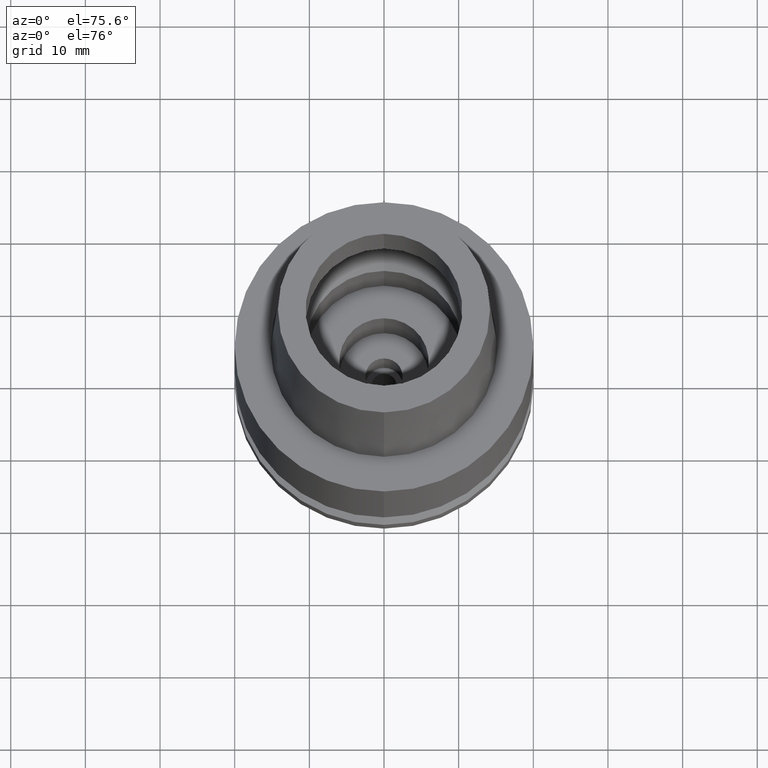
[diagram: clean part render]
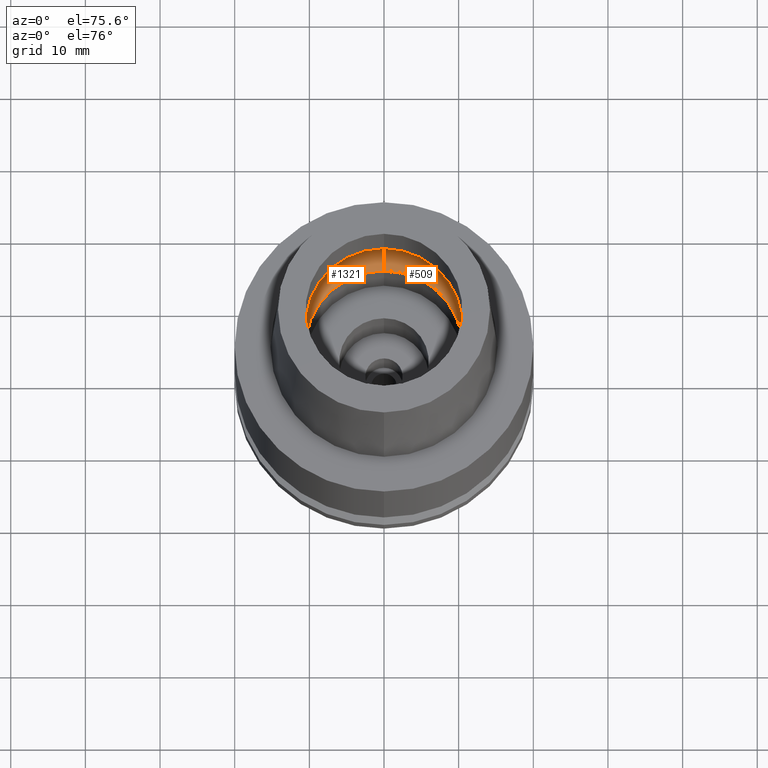
[diagram: same view with one multi-face feature highlighted, each face labeled with its STEP entity id]
A machine part, auxiliary view. The highlighted faces form ONE feature: a constant-radius fillet chain: 2 tangent blend faces with common blend radius 5 mm. The faces share edges in the B-rep.
Their STEP definitions:
[1] entity #509 (Torus):
#20 = VERTEX_POINT ( 'NONE', #2159 ) ;
#82 = DIRECTION ( 'NONE',  ( 0.0000000000000000000, 1.000000000000000000, 0.0000000000000000000 ) ) ;
#90 = DIRECTION ( 'NONE',  ( 0.0000000000000000000, 1.000000000000000000, 0.0000000000000000000 ) ) ;
#95 = DIRECTION ( 'NONE',  ( 0.0000000000000000000, 0.0000000000000000000, 1.000000000000000000 ) ) ;
#152 = CARTESIAN_POINT ( 'NONE',  ( 0.0000000000000000000, 12.75000000000000000, 4.225999999999999979 ) ) ;
#327 = CIRCLE ( 'NONE', #1332, 12.75000000000000000 ) ;
#352 = EDGE_CURVE ( 'NONE', #581, #362, #1424, .T. ) ;
#362 = VERTEX_POINT ( 'NONE', #152 ) ;
#432 = AXIS2_PLACEMENT_3D ( 'NONE', #2660, #1178, #785 ) ;
#469 = DIRECTION ( 'NONE',  ( 0.0000000000000000000, -0.5500000000000007105, -0.8351646544245028281 ) ) ;
#477 = AXIS2_PLACEMENT_3D ( 'NONE', #1713, #1469, #469 ) ;
#509 = ADVANCED_FACE ( 'NONE', ( #1107 ), #1258, .F. ) ;
#520 = ORIENTED_EDGE ( 'NONE', *, *, #1068, .F. ) ;
#581 = VERTEX_POINT ( 'NONE', #2356 ) ;
#687 = CIRCLE ( 'NONE', #477, 4.999999999999994671 ) ;
#745 = AXIS2_PLACEMENT_3D ( 'NONE', #1736, #2573, #1946 ) ;
#785 = DIRECTION ( 'NONE',  ( 0.0000000000000000000, 0.5500000000000007105, -0.8351646544245028281 ) ) ;
#1068 = EDGE_CURVE ( 'NONE', #1077, #581, #2228, .T. ) ;
#1077 = VERTEX_POINT ( 'NONE', #1318 ) ;
#1107 = FACE_OUTER_BOUND ( 'NONE', #2452, .T. ) ;
#1178 = DIRECTION ( 'NONE',  ( 1.000000000000000000, 0.0000000000000000000, 0.0000000000000000000 ) ) ;
#1258 = TOROIDAL_SURFACE ( 'NONE', #1605, 7.750000000000000000, 5.000000000000000000 ) ;
#1318 = CARTESIAN_POINT ( 'NONE',  ( 0.0000000000000000000, -10.50000000000000000, 0.05017672787749999364 ) ) ;
#1324 = ORIENTED_EDGE ( 'NONE', *, *, #352, .F. ) ;
#1332 = AXIS2_PLACEMENT_3D ( 'NONE', #2309, #1461, #90 ) ;
#1365 = EDGE_CURVE ( 'NONE', #362, #20, #327, .T. ) ;
#1424 = CIRCLE ( 'NONE', #432, 4.999999999999994671 ) ;
#1461 = DIRECTION ( 'NONE',  ( 0.0000000000000000000, 0.0000000000000000000, -1.000000000000000000 ) ) ;
#1469 = DIRECTION ( 'NONE',  ( -1.000000000000000000, 0.0000000000000000000, 0.0000000000000000000 ) ) ;
#1605 = AXIS2_PLACEMENT_3D ( 'NONE', #1949, #95, #82 ) ;
#1713 = CARTESIAN_POINT ( 'NONE',  ( 0.0000000000000000000, -7.750000000000000000, 4.225999999999999979 ) ) ;
#1736 = CARTESIAN_POINT ( 'NONE',  ( 0.0000000000000000000, 0.0000000000000000000, 0.05017672787749999364 ) ) ;
#1819 = ORIENTED_EDGE ( 'NONE', *, *, #1365, .F. ) ;
#1946 = DIRECTION ( 'NONE',  ( 0.0000000000000000000, -1.000000000000000000, 0.0000000000000000000 ) ) ;
#1949 = CARTESIAN_POINT ( 'NONE',  ( 0.0000000000000000000, 0.0000000000000000000, 4.225999999999999979 ) ) ;
#2159 = CARTESIAN_POINT ( 'NONE',  ( 0.0000000000000000000, -12.75000000000000000, 4.225999999999999979 ) ) ;
#2181 = EDGE_CURVE ( 'NONE', #1077, #20, #687, .T. ) ;
#2228 = CIRCLE ( 'NONE', #745, 10.50000000000000000 ) ;
#2309 = CARTESIAN_POINT ( 'NONE',  ( 0.0000000000000000000, 0.0000000000000000000, 4.225999999999999979 ) ) ;
#2356 = CARTESIAN_POINT ( 'NONE',  ( 0.0000000000000000000, 10.50000000000000000, 0.05017672787750999952 ) ) ;
#2409 = ORIENTED_EDGE ( 'NONE', *, *, #2181, .T. ) ;
#2452 = EDGE_LOOP ( 'NONE', ( #520, #2409, #1819, #1324 ) ) ;
#2573 = DIRECTION ( 'NONE',  ( 0.0000000000000000000, 0.0000000000000000000, 1.000000000000000000 ) ) ;
#2660 = CARTESIAN_POINT ( 'NONE',  ( 0.0000000000000000000, 7.750000000000000000, 4.225999999999999979 ) ) ;
[2] entity #1321 (Torus):
#18 = EDGE_CURVE ( 'NONE', #581, #1077, #660, .T. ) ;
#20 = VERTEX_POINT ( 'NONE', #2159 ) ;
#53 = CARTESIAN_POINT ( 'NONE',  ( 0.0000000000000000000, 0.0000000000000000000, 4.225999999999999979 ) ) ;
#152 = CARTESIAN_POINT ( 'NONE',  ( 0.0000000000000000000, 12.75000000000000000, 4.225999999999999979 ) ) ;
#267 = DIRECTION ( 'NONE',  ( 0.0000000000000000000, 0.0000000000000000000, 1.000000000000000000 ) ) ;
#352 = EDGE_CURVE ( 'NONE', #581, #362, #1424, .T. ) ;
#362 = VERTEX_POINT ( 'NONE', #152 ) ;
#432 = AXIS2_PLACEMENT_3D ( 'NONE', #2660, #1178, #785 ) ;
#469 = DIRECTION ( 'NONE',  ( 0.0000000000000000000, -0.5500000000000007105, -0.8351646544245028281 ) ) ;
#477 = AXIS2_PLACEMENT_3D ( 'NONE', #1713, #1469, #469 ) ;
#489 = CARTESIAN_POINT ( 'NONE',  ( 0.0000000000000000000, 0.0000000000000000000, 4.225999999999999979 ) ) ;
#581 = VERTEX_POINT ( 'NONE', #2356 ) ;
#660 = CIRCLE ( 'NONE', #2667, 10.50000000000000000 ) ;
#679 = CARTESIAN_POINT ( 'NONE',  ( 0.0000000000000000000, 0.0000000000000000000, 0.05017672787749999364 ) ) ;
#687 = CIRCLE ( 'NONE', #477, 4.999999999999994671 ) ;
#698 = FACE_OUTER_BOUND ( 'NONE', #1209, .T. ) ;
#725 = ORIENTED_EDGE ( 'NONE', *, *, #352, .T. ) ;
#785 = DIRECTION ( 'NONE',  ( 0.0000000000000000000, 0.5500000000000007105, -0.8351646544245028281 ) ) ;
#861 = TOROIDAL_SURFACE ( 'NONE', #1585, 7.750000000000000000, 5.000000000000000000 ) ;
#939 = EDGE_CURVE ( 'NONE', #20, #362, #2365, .T. ) ;
#1077 = VERTEX_POINT ( 'NONE', #1318 ) ;
#1178 = DIRECTION ( 'NONE',  ( 1.000000000000000000, 0.0000000000000000000, 0.0000000000000000000 ) ) ;
#1209 = EDGE_LOOP ( 'NONE', ( #2401, #1752, #1990, #725 ) ) ;
#1318 = CARTESIAN_POINT ( 'NONE',  ( 0.0000000000000000000, -10.50000000000000000, 0.05017672787749999364 ) ) ;
#1321 = ADVANCED_FACE ( 'NONE', ( #698 ), #861, .F. ) ;
#1424 = CIRCLE ( 'NONE', #432, 4.999999999999994671 ) ;
#1469 = DIRECTION ( 'NONE',  ( -1.000000000000000000, 0.0000000000000000000, 0.0000000000000000000 ) ) ;
#1585 = AXIS2_PLACEMENT_3D ( 'NONE', #489, #2177, #2517 ) ;
#1608 = AXIS2_PLACEMENT_3D ( 'NONE', #53, #2310, #2557 ) ;
#1713 = CARTESIAN_POINT ( 'NONE',  ( 0.0000000000000000000, -7.750000000000000000, 4.225999999999999979 ) ) ;
#1752 = ORIENTED_EDGE ( 'NONE', *, *, #2181, .F. ) ;
#1990 = ORIENTED_EDGE ( 'NONE', *, *, #18, .F. ) ;
#2159 = CARTESIAN_POINT ( 'NONE',  ( 0.0000000000000000000, -12.75000000000000000, 4.225999999999999979 ) ) ;
#2177 = DIRECTION ( 'NONE',  ( 0.0000000000000000000, 0.0000000000000000000, 1.000000000000000000 ) ) ;
#2181 = EDGE_CURVE ( 'NONE', #1077, #20, #687, .T. ) ;
#2182 = DIRECTION ( 'NONE',  ( 0.0000000000000000000, 1.000000000000000000, 0.0000000000000000000 ) ) ;
#2310 = DIRECTION ( 'NONE',  ( 0.0000000000000000000, 0.0000000000000000000, -1.000000000000000000 ) ) ;
#2356 = CARTESIAN_POINT ( 'NONE',  ( 0.0000000000000000000, 10.50000000000000000, 0.05017672787750999952 ) ) ;
#2365 = CIRCLE ( 'NONE', #1608, 12.75000000000000000 ) ;
#2401 = ORIENTED_EDGE ( 'NONE', *, *, #939, .F. ) ;
#2517 = DIRECTION ( 'NONE',  ( 0.0000000000000000000, 1.000000000000000000, 0.0000000000000000000 ) ) ;
#2557 = DIRECTION ( 'NONE',  ( 0.0000000000000000000, -1.000000000000000000, 0.0000000000000000000 ) ) ;
#2660 = CARTESIAN_POINT ( 'NONE',  ( 0.0000000000000000000, 7.750000000000000000, 4.225999999999999979 ) ) ;
#2667 = AXIS2_PLACEMENT_3D ( 'NONE', #679, #267, #2182 ) ;